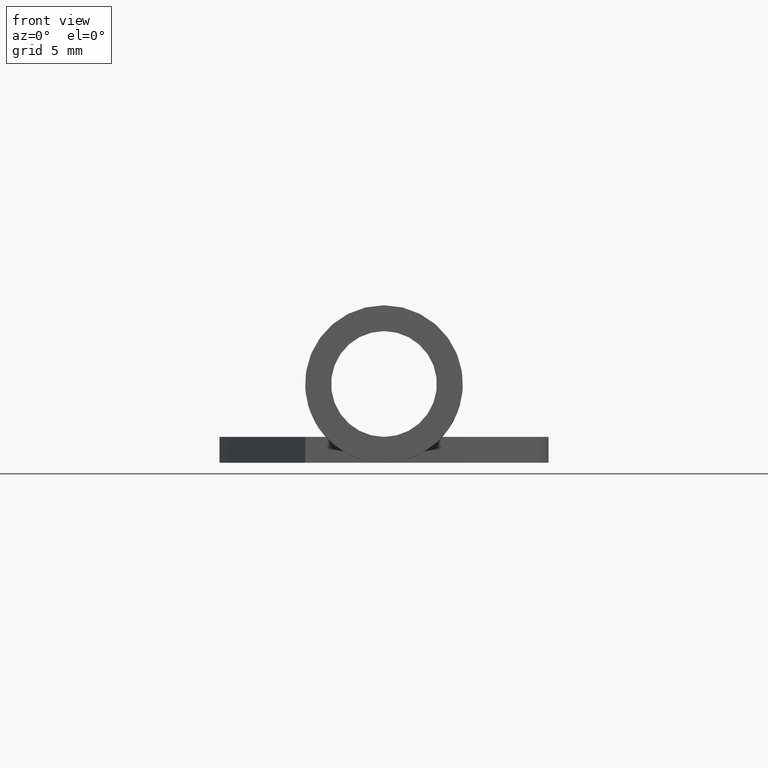
[diagram: clean part render]
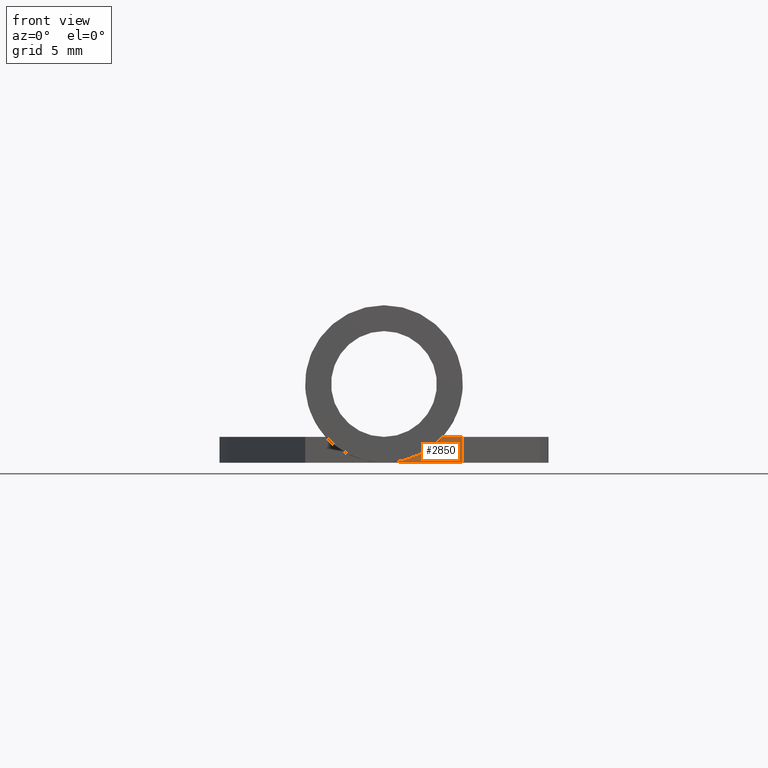
[diagram: same view with one face highlighted and labeled with its STEP entity id]
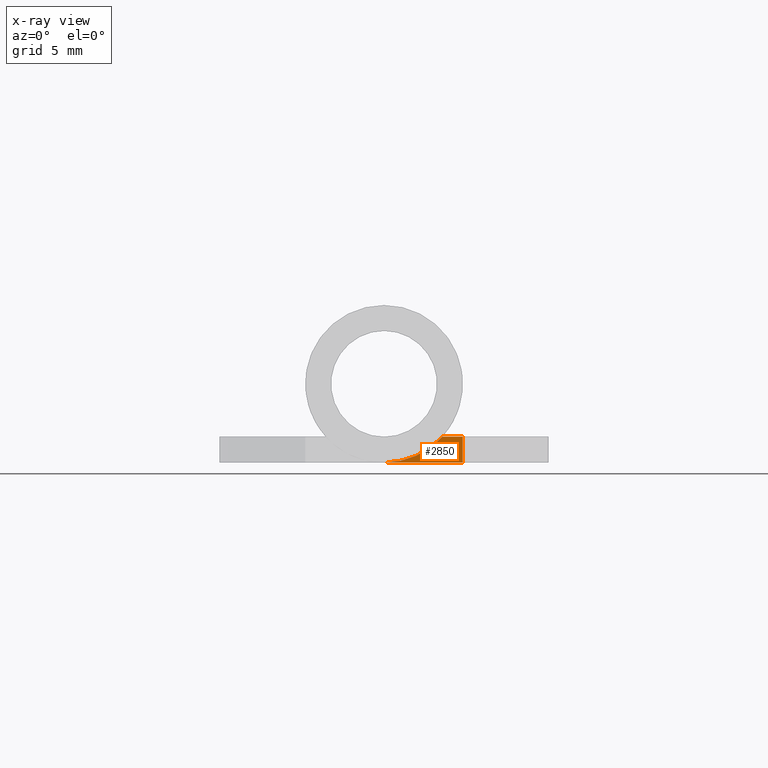
[diagram: x-ray of the same camera — body ghosted, the highlighted face saturated]
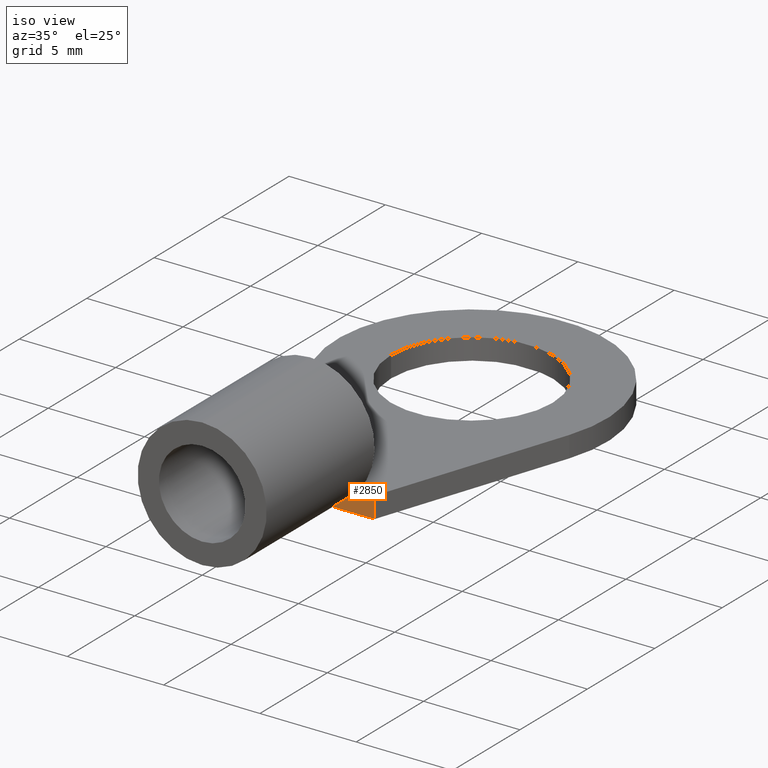
[diagram: same view with one face highlighted and labeled with its STEP entity id]
A machine part, front view. The second image highlights one B-rep face of the part: STEP entity #2850.
The next image is the same camera in x-ray: the body ghosted, the highlighted face saturated — about 1% of this face is hidden behind the body in this view.
A second angle (iso view) of the same face is appended — the face is thin or edge-on in the first view.
In plain terms, the highlighted planar face has unit normal (0, -1, 0).
Its self-contained STEP definition (entity closure, byte-faithful):
#650=CARTESIAN_POINT('',(-36.9213334627195,0.,91.4212229138226));
#660=DIRECTION('',(0.150207606047676,0.974359518819134,0.167514784935453
));
#670=VECTOR('',#660,1.);
#680=LINE('',#650,#670);
#690=CARTESIAN_POINT('',(-4.30467363790053,211.576189838954,
127.796030419464));
#700=VERTEX_POINT('',#690);
#730=CARTESIAN_POINT('',(-3.80147815764083,214.840294226998,
128.357204948997));
#740=VERTEX_POINT('',#730);
#750=EDGE_CURVE('',#700,#740,#680,.T.);
#1180=CARTESIAN_POINT('',(-3.80147816414881,215.026675079622,
127.273109852719));
#1190=VERTEX_POINT('',#1180);
#1220=CARTESIAN_POINT('',(-36.9500660070076,0.,90.3050846673102));
#1230=DIRECTION('',(-0.150207606047676,-0.974359518819134,
-0.167514784935453));
#1240=VECTOR('',#1230,1.);
#1250=LINE('',#1220,#1240);
#1260=CARTESIAN_POINT('',(-3.93186817036907,214.180867420061,
127.127696085571));
#1270=VERTEX_POINT('',#1260);
#1280=EDGE_CURVE('',#1190,#1270,#1250,.T.);
#2120=CARTESIAN_POINT('',(-3.80147816414881,215.026675079622,
127.273109852719));
#2130=DIRECTION('',(5.91634389571428E-9,-0.169437138749457,
0.985540996616781));
#2140=VECTOR('',#2130,1.);
#2150=LINE('',#2120,#2140);
#2160=EDGE_CURVE('',#1190,#740,#2150,.T.);
#2290=CARTESIAN_POINT('',(-4.80786912466825,208.498466303534,
126.150760793651));
#2300=DIRECTION('',(-0.98865447709775,0.148035752772573,
0.0254507527517699));
#2310=DIRECTION('',(-0.150207606047676,-0.974359518819135,
-0.167514784935453));
#2320=AXIS2_PLACEMENT_3D('',#2290,#2300,#2310);
#2330=PLANE('',#2320);
#2340=CARTESIAN_POINT('',(-4.30467365772028,212.143804253765,
124.494468080797));
#2350=DIRECTION('',(-0.98865447709775,0.148035752772573,
0.0254507527517699));
#2360=DIRECTION('',(-5.91634388347198E-9,0.169437138749457,
-0.985540996616781));
#2370=AXIS2_PLACEMENT_3D('',#2340,#2350,#2360);
#2380=CIRCLE('',#2370,3.35);
#2780=ORIENTED_EDGE('',*,*,#1280,.T.);
#2790=ORIENTED_EDGE('',*,*,#2160,.F.);
#2800=ORIENTED_EDGE('',*,*,#750,.T.);
#2810=EDGE_CURVE('',#700,#1270,#2380,.T.);
#2820=ORIENTED_EDGE('',*,*,#2810,.F.);
#2830=EDGE_LOOP('',(#2820,#2800,#2790,#2780));
#2840=FACE_OUTER_BOUND('',#2830,.T.);
#2850=ADVANCED_FACE('',(#2840),#2330,.T.);